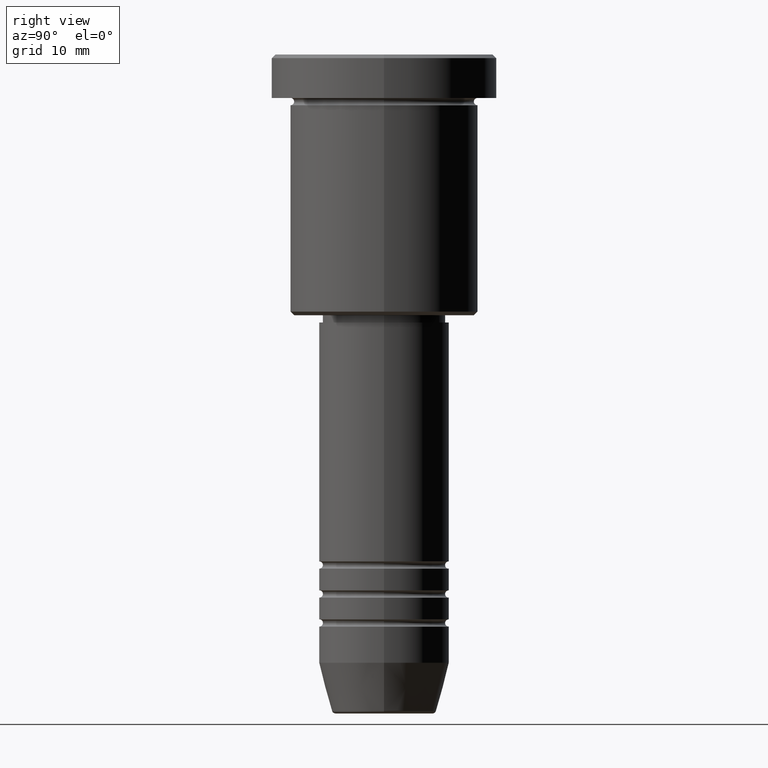
[diagram: clean part render]
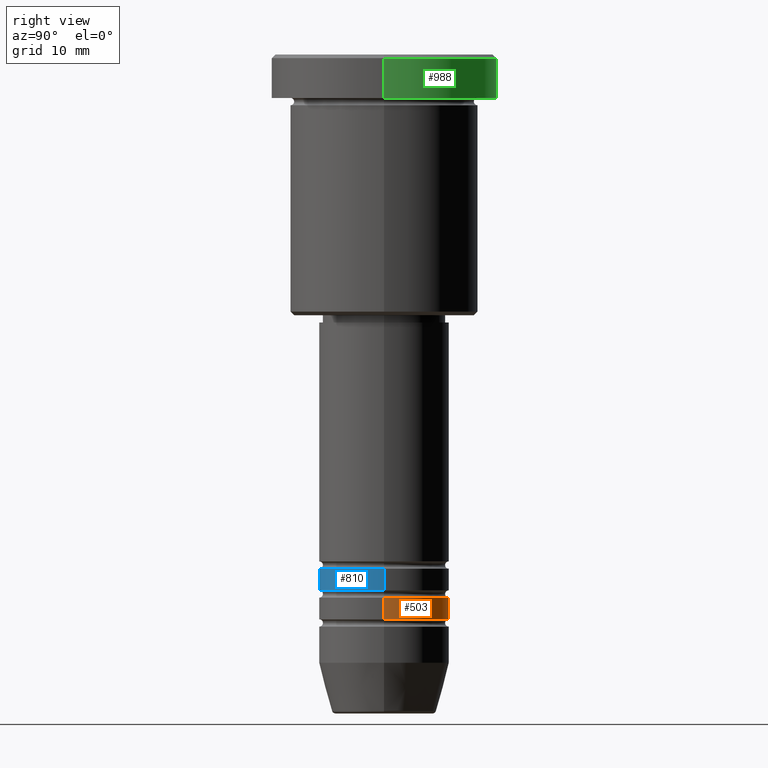
[diagram: same view with three faces highlighted in distinct colors, each labeled with its STEP entity id]
A machine part, right view with three faces highlighted in distinct colors.
Their STEP definitions:

[orange] entity #503 — the highlighted cylindrical surface (partial cylindrical patch) has radius 9 mm, axis along (-0, -0, 1).
#34 = ORIENTED_EDGE ( 'NONE', *, *, #49, .F. ) ;
#39 = CIRCLE ( 'NONE', #521, 9.000000000000000000 ) ;
#49 = EDGE_CURVE ( 'NONE', #491, #736, #39, .T. ) ;
#58 = DIRECTION ( 'NONE',  ( 1.000000000000000000, 0.000000000000000000, 0.000000000000000000 ) ) ;
#66 = CARTESIAN_POINT ( 'NONE',  ( 0.000000000000000000, 0.000000000000000000, -74.99999999999987210 ) ) ;
#127 = CARTESIAN_POINT ( 'NONE',  ( 0.000000000000000000, 0.000000000000000000, -77.99999999999987210 ) ) ;
#165 = DIRECTION ( 'NONE',  ( -0.000000000000000000, -0.000000000000000000, 1.000000000000000000 ) ) ;
#366 = AXIS2_PLACEMENT_3D ( 'NONE', #594, #686, #1146 ) ;
#386 = EDGE_LOOP ( 'NONE', ( #1181, #508, #34, #700 ) ) ;
#430 = VERTEX_POINT ( 'NONE', #490 ) ;
#465 = CARTESIAN_POINT ( 'NONE',  ( 9.000000000000001776, 0.000000000000000000, -77.99999999999987210 ) ) ;
#490 = CARTESIAN_POINT ( 'NONE',  ( -9.000000000000001776, 1.102182119232617911E-15, -77.99999999999987210 ) ) ;
#491 = VERTEX_POINT ( 'NONE', #964 ) ;
#493 = DIRECTION ( 'NONE',  ( -0.000000000000000000, -0.000000000000000000, 1.000000000000000000 ) ) ;
#503 = ADVANCED_FACE ( 'NONE', ( #875 ), #517, .T. ) ;
#508 = ORIENTED_EDGE ( 'NONE', *, *, #569, .T. ) ;
#517 = CYLINDRICAL_SURFACE ( 'NONE', #366, 9.000000000000001776 ) ;
#521 = AXIS2_PLACEMENT_3D ( 'NONE', #66, #165, #58 ) ;
#558 = VECTOR ( 'NONE', #1130, 1000.000000000000000 ) ;
#569 = EDGE_CURVE ( 'NONE', #430, #736, #827, .T. ) ;
#594 = CARTESIAN_POINT ( 'NONE',  ( 0.000000000000000000, 0.000000000000000000, 0.000000000000000000 ) ) ;
#604 = VERTEX_POINT ( 'NONE', #465 ) ;
#617 = AXIS2_PLACEMENT_3D ( 'NONE', #127, #963, #667 ) ;
#645 = EDGE_CURVE ( 'NONE', #604, #491, #1048, .T. ) ;
#667 = DIRECTION ( 'NONE',  ( 1.000000000000000000, 0.000000000000000000, 0.000000000000000000 ) ) ;
#686 = DIRECTION ( 'NONE',  ( -0.000000000000000000, -0.000000000000000000, 1.000000000000000000 ) ) ;
#700 = ORIENTED_EDGE ( 'NONE', *, *, #645, .F. ) ;
#736 = VERTEX_POINT ( 'NONE', #1013 ) ;
#737 = CARTESIAN_POINT ( 'NONE',  ( -9.000000000000001776, 1.102182119232617911E-15, 0.000000000000000000 ) ) ;
#826 = EDGE_CURVE ( 'NONE', #604, #430, #1126, .T. ) ;
#827 = LINE ( 'NONE', #737, #558 ) ;
#875 = FACE_OUTER_BOUND ( 'NONE', #386, .T. ) ;
#944 = CARTESIAN_POINT ( 'NONE',  ( 9.000000000000001776, 0.000000000000000000, 0.000000000000000000 ) ) ;
#956 = VECTOR ( 'NONE', #493, 1000.000000000000000 ) ;
#963 = DIRECTION ( 'NONE',  ( -0.000000000000000000, -0.000000000000000000, 1.000000000000000000 ) ) ;
#964 = CARTESIAN_POINT ( 'NONE',  ( 9.000000000000000000, 0.000000000000000000, -74.99999999999987210 ) ) ;
#1013 = CARTESIAN_POINT ( 'NONE',  ( -9.000000000000000000, 1.102182119232617714E-15, -74.99999999999987210 ) ) ;
#1048 = LINE ( 'NONE', #944, #956 ) ;
#1126 = CIRCLE ( 'NONE', #617, 9.000000000000001776 ) ;
#1130 = DIRECTION ( 'NONE',  ( -0.000000000000000000, -0.000000000000000000, 1.000000000000000000 ) ) ;
#1146 = DIRECTION ( 'NONE',  ( 1.000000000000000000, 0.000000000000000000, 0.000000000000000000 ) ) ;
#1181 = ORIENTED_EDGE ( 'NONE', *, *, #826, .T. ) ;

[blue] entity #810 — the highlighted cylindrical surface (partial cylindrical patch) has radius 9 mm, axis along (-0, -0, 1).
#31 = DIRECTION ( 'NONE',  ( -0.000000000000000000, -0.000000000000000000, 1.000000000000000000 ) ) ;
#47 = EDGE_LOOP ( 'NONE', ( #306, #950, #564, #603 ) ) ;
#60 = DIRECTION ( 'NONE',  ( -0.000000000000000000, -0.000000000000000000, 1.000000000000000000 ) ) ;
#67 = AXIS2_PLACEMENT_3D ( 'NONE', #242, #60, #424 ) ;
#108 = CARTESIAN_POINT ( 'NONE',  ( -9.000000000000001776, 1.102182119232617911E-15, -73.99999999999990052 ) ) ;
#136 = AXIS2_PLACEMENT_3D ( 'NONE', #728, #646, #1006 ) ;
#190 = FACE_OUTER_BOUND ( 'NONE', #47, .T. ) ;
#207 = EDGE_CURVE ( 'NONE', #763, #460, #1002, .T. ) ;
#242 = CARTESIAN_POINT ( 'NONE',  ( 0.000000000000000000, 0.000000000000000000, -73.99999999999990052 ) ) ;
#279 = EDGE_CURVE ( 'NONE', #696, #460, #557, .T. ) ;
#303 = DIRECTION ( 'NONE',  ( 1.000000000000000000, 0.000000000000000000, 0.000000000000000000 ) ) ;
#306 = ORIENTED_EDGE ( 'NONE', *, *, #890, .F. ) ;
#351 = CIRCLE ( 'NONE', #67, 9.000000000000001776 ) ;
#377 = CARTESIAN_POINT ( 'NONE',  ( 9.000000000000001776, 0.000000000000000000, 0.000000000000000000 ) ) ;
#420 = CARTESIAN_POINT ( 'NONE',  ( 9.000000000000000000, 0.000000000000000000, -70.99999999999988631 ) ) ;
#424 = DIRECTION ( 'NONE',  ( 1.000000000000000000, 0.000000000000000000, 0.000000000000000000 ) ) ;
#460 = VERTEX_POINT ( 'NONE', #420 ) ;
#505 = CYLINDRICAL_SURFACE ( 'NONE', #814, 9.000000000000001776 ) ;
#557 = CIRCLE ( 'NONE', #136, 9.000000000000000000 ) ;
#564 = ORIENTED_EDGE ( 'NONE', *, *, #207, .T. ) ;
#603 = ORIENTED_EDGE ( 'NONE', *, *, #279, .F. ) ;
#606 = DIRECTION ( 'NONE',  ( -0.000000000000000000, -0.000000000000000000, 1.000000000000000000 ) ) ;
#646 = DIRECTION ( 'NONE',  ( -0.000000000000000000, -0.000000000000000000, 1.000000000000000000 ) ) ;
#678 = VERTEX_POINT ( 'NONE', #108 ) ;
#696 = VERTEX_POINT ( 'NONE', #922 ) ;
#728 = CARTESIAN_POINT ( 'NONE',  ( 0.000000000000000000, 0.000000000000000000, -70.99999999999988631 ) ) ;
#763 = VERTEX_POINT ( 'NONE', #1001 ) ;
#809 = DIRECTION ( 'NONE',  ( -0.000000000000000000, -0.000000000000000000, 1.000000000000000000 ) ) ;
#810 = ADVANCED_FACE ( 'NONE', ( #190 ), #505, .T. ) ;
#814 = AXIS2_PLACEMENT_3D ( 'NONE', #1139, #606, #303 ) ;
#846 = CARTESIAN_POINT ( 'NONE',  ( -9.000000000000001776, 1.102182119232617911E-15, 0.000000000000000000 ) ) ;
#890 = EDGE_CURVE ( 'NONE', #678, #696, #1123, .T. ) ;
#913 = VECTOR ( 'NONE', #809, 1000.000000000000000 ) ;
#922 = CARTESIAN_POINT ( 'NONE',  ( -9.000000000000000000, 1.102182119232617714E-15, -70.99999999999988631 ) ) ;
#938 = VECTOR ( 'NONE', #31, 1000.000000000000000 ) ;
#950 = ORIENTED_EDGE ( 'NONE', *, *, #962, .T. ) ;
#962 = EDGE_CURVE ( 'NONE', #678, #763, #351, .T. ) ;
#1001 = CARTESIAN_POINT ( 'NONE',  ( 9.000000000000001776, 0.000000000000000000, -73.99999999999990052 ) ) ;
#1002 = LINE ( 'NONE', #377, #913 ) ;
#1006 = DIRECTION ( 'NONE',  ( 1.000000000000000000, 0.000000000000000000, 0.000000000000000000 ) ) ;
#1123 = LINE ( 'NONE', #846, #938 ) ;
#1139 = CARTESIAN_POINT ( 'NONE',  ( 0.000000000000000000, 0.000000000000000000, 0.000000000000000000 ) ) ;

[green] entity #988 — the highlighted cylindrical surface (partial cylindrical patch) has radius 15.5 mm, axis along (-0, -0, 1).
#9 = EDGE_LOOP ( 'NONE', ( #240, #155, #769, #560 ) ) ;
#40 = CIRCLE ( 'NONE', #344, 15.50000000000000000 ) ;
#43 = CARTESIAN_POINT ( 'NONE',  ( 0.000000000000000000, 0.000000000000000000, -0.4999999999999987232 ) ) ;
#55 = LINE ( 'NONE', #779, #368 ) ;
#63 = AXIS2_PLACEMENT_3D ( 'NONE', #43, #410, #117 ) ;
#117 = DIRECTION ( 'NONE',  ( 1.000000000000000000, 0.000000000000000000, 0.000000000000000000 ) ) ;
#123 = EDGE_CURVE ( 'NONE', #957, #212, #40, .T. ) ;
#155 = ORIENTED_EDGE ( 'NONE', *, *, #550, .T. ) ;
#161 = DIRECTION ( 'NONE',  ( -0.000000000000000000, -0.000000000000000000, 1.000000000000000000 ) ) ;
#169 = DIRECTION ( 'NONE',  ( 1.000000000000000000, 0.000000000000000000, 0.000000000000000000 ) ) ;
#212 = VERTEX_POINT ( 'NONE', #1179 ) ;
#227 = LINE ( 'NONE', #509, #348 ) ;
#240 = ORIENTED_EDGE ( 'NONE', *, *, #123, .T. ) ;
#288 = CIRCLE ( 'NONE', #63, 15.50000000000000000 ) ;
#324 = VERTEX_POINT ( 'NONE', #675 ) ;
#327 = EDGE_CURVE ( 'NONE', #324, #961, #288, .T. ) ;
#331 = DIRECTION ( 'NONE',  ( -0.000000000000000000, -0.000000000000000000, 1.000000000000000000 ) ) ;
#344 = AXIS2_PLACEMENT_3D ( 'NONE', #602, #161, #169 ) ;
#348 = VECTOR ( 'NONE', #921, 1000.000000000000000 ) ;
#368 = VECTOR ( 'NONE', #331, 1000.000000000000000 ) ;
#410 = DIRECTION ( 'NONE',  ( 0.000000000000000000, 0.000000000000000000, -1.000000000000000000 ) ) ;
#435 = FACE_OUTER_BOUND ( 'NONE', #9, .T. ) ;
#509 = CARTESIAN_POINT ( 'NONE',  ( -15.50000000000000000, 1.898202538678397557E-15, 0.000000000000000000 ) ) ;
#550 = EDGE_CURVE ( 'NONE', #212, #324, #227, .T. ) ;
#560 = ORIENTED_EDGE ( 'NONE', *, *, #948, .F. ) ;
#602 = CARTESIAN_POINT ( 'NONE',  ( 0.000000000000000000, 0.000000000000000000, -5.999999999999995559 ) ) ;
#623 = DIRECTION ( 'NONE',  ( 1.000000000000000000, 0.000000000000000000, 0.000000000000000000 ) ) ;
#675 = CARTESIAN_POINT ( 'NONE',  ( -15.50000000000000000, 1.898202538678397557E-15, -0.4999999999999987232 ) ) ;
#693 = CARTESIAN_POINT ( 'NONE',  ( 15.50000000000000000, 0.000000000000000000, -0.4999999999999987232 ) ) ;
#769 = ORIENTED_EDGE ( 'NONE', *, *, #327, .T. ) ;
#779 = CARTESIAN_POINT ( 'NONE',  ( 15.50000000000000000, 0.000000000000000000, 0.000000000000000000 ) ) ;
#794 = CYLINDRICAL_SURFACE ( 'NONE', #1128, 15.50000000000000000 ) ;
#874 = CARTESIAN_POINT ( 'NONE',  ( 15.50000000000000000, 0.000000000000000000, -5.999999999999995559 ) ) ;
#921 = DIRECTION ( 'NONE',  ( -0.000000000000000000, -0.000000000000000000, 1.000000000000000000 ) ) ;
#948 = EDGE_CURVE ( 'NONE', #957, #961, #55, .T. ) ;
#957 = VERTEX_POINT ( 'NONE', #874 ) ;
#961 = VERTEX_POINT ( 'NONE', #693 ) ;
#988 = ADVANCED_FACE ( 'NONE', ( #435 ), #794, .T. ) ;
#995 = DIRECTION ( 'NONE',  ( -0.000000000000000000, -0.000000000000000000, 1.000000000000000000 ) ) ;
#1066 = CARTESIAN_POINT ( 'NONE',  ( 0.000000000000000000, 0.000000000000000000, 0.000000000000000000 ) ) ;
#1128 = AXIS2_PLACEMENT_3D ( 'NONE', #1066, #995, #623 ) ;
#1179 = CARTESIAN_POINT ( 'NONE',  ( -15.50000000000000000, 1.898202538678397557E-15, -5.999999999999995559 ) ) ;